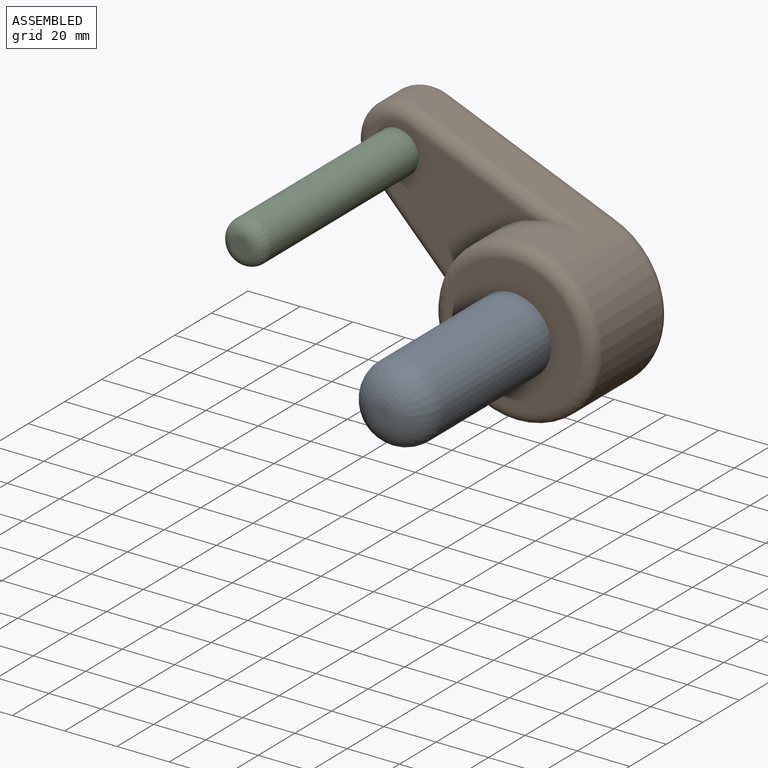
[diagram: assembled view]
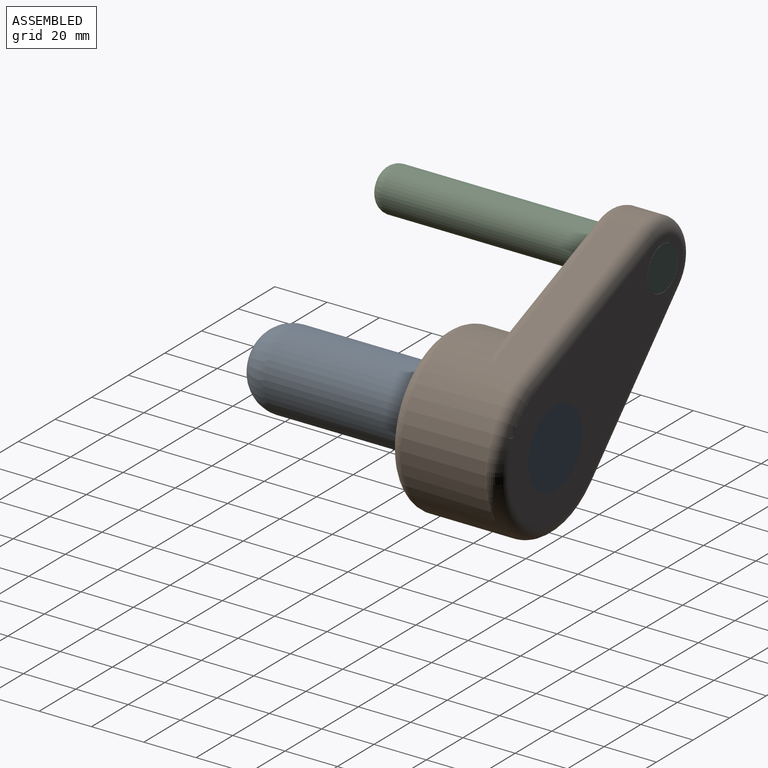
[diagram: assembled view, second angle]
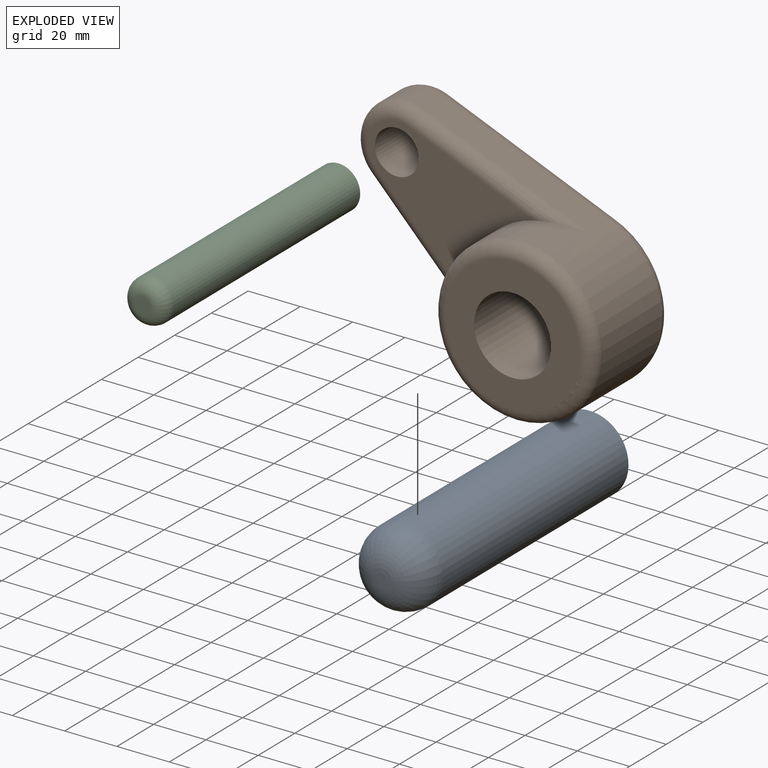
[diagram: exploded view]
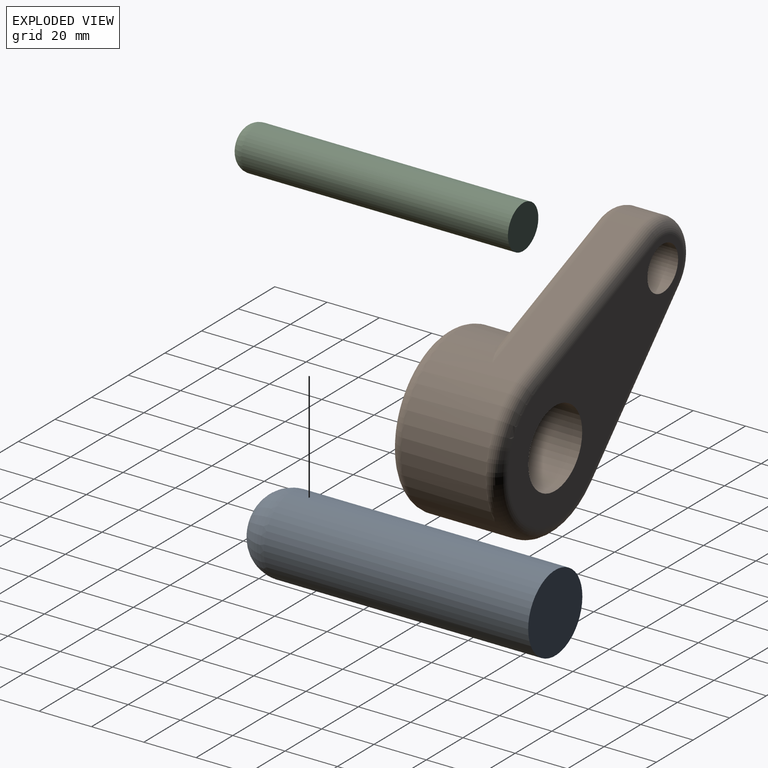
[diagram: exploded view, second angle]
ASSEMBLY  parts=3 mates=2
PART A: 4 faces, bbox 29.6x113.8x29.6 mm
  f0: cylinder r=14.8mm len=101.09mm, axis (0,1,0), area 9399.4mm2, adj f2,f3
  f1: plane 4.2x4.2mm, normal (0,-1,0), area 13.8mm2, adj f3
  f2: plane 29.6x29.6mm, normal (0,1,0), area 687.9mm2, adj f0
  f3: torus R=2.1mm, axis (0,-1,0), area 1276.4mm2, adj f0,f1
PART B: 17 faces, bbox 109.6x42.2x90.6 mm
  f0: plane 63.81x56.55mm, normal (0,-1,0), area 1326mm2, adj f1,f6,f14,f15,f16
  f1: cylinder r=30.83mm len=61.65mm, axis (0,1,0), area 4897.5mm2, adj f0,f2,f4,f11,f13,f14,f16
  f2: plane 62.54x25.53mm, normal (0.38,0,0.93), area 772.1mm2, adj f1,f3,f9,f14
  f3: cylinder r=16.19mm len=27.51mm, axis (0,1,0), area 512.1mm2, adj f2,f4,f10,f15
  f4: plane 49.85x48.11mm, normal (-0.72,0,-0.69), area 791.9mm2, adj f1,f3,f12,f16
  f5: cylinder r=14.71mm len=42.16mm, axis (0,1,0), area 3898.1mm2, adj f7,f8
  f6: cylinder r=8.38mm len=21.59mm, axis (0,1,0), area 1136.2mm2, adj f0,f7
  f7: plane 95.57x76.61mm, normal (0,1,0), area 3002.6mm2, adj f5,f6,f9,f10,f11,f12
  f8: plane 51.49x51.49mm, normal (0,-1,0), area 1402.2mm2, adj f5,f13
  f9: cylinder r=5.08mm len=64.65mm, axis (-0.93,0,0.38), area 539.8mm2, adj f2,f7,f10,f11
  f10: torus R=11.11mm, axis (0,-1,0), area 317.2mm2, adj f3,f7,f9,f12
  f11: torus R=25.75mm, axis (0,-1,0), area 832.6mm2, adj f1,f7,f9,f12
  f12: cylinder r=5.08mm len=53.39mm, axis (0.69,0,-0.72), area 552.9mm2, adj f4,f7,f10,f11
  f13: torus R=25.75mm, axis (0,-1,0), area 1453mm2, adj f1,f8
  f14: cylinder r=5.08mm len=64.55mm, axis (0.93,0,-0.38), area 475.4mm2, adj f0,f1,f2,f15
  f15: torus R=11.11mm, axis (0,-1,0), area 317.2mm2, adj f0,f3,f14,f16
  f16: cylinder r=5.08mm len=53.39mm, axis (-0.69,0,0.72), area 480.1mm2, adj f0,f1,f4,f15
PART C: 4 faces, bbox 16.6x106.9x16.6 mm
  f0: cylinder r=8.32mm len=101.85mm, axis (0,1,0), area 5321.5mm2, adj f2,f3
  f1: plane 6.47x6.47mm, normal (0,-1,0), area 32.9mm2, adj f3
  f2: plane 16.63x16.63mm, normal (0,1,0), area 217.2mm2, adj f0
  f3: torus R=3.24mm, axis (0,-1,0), area 324.4mm2, adj f0,f1
PLACE A t=(-181.73,-247.9,130.13)mm
PLACE B t=(-181.73,-247.9,130.13)mm
PLACE C rot(axis=(0,1,0),90deg) t=(-280.28,-247.9,111.12)mm
MATE fastened C.f0 <-> B.f3  axis (0,1,0) through (-240.44,-247.9,169.89)mm
MATE fastened A.f0 <-> B.f1  axis (0,1,0) through (-181.73,-247.9,130.13)mm
